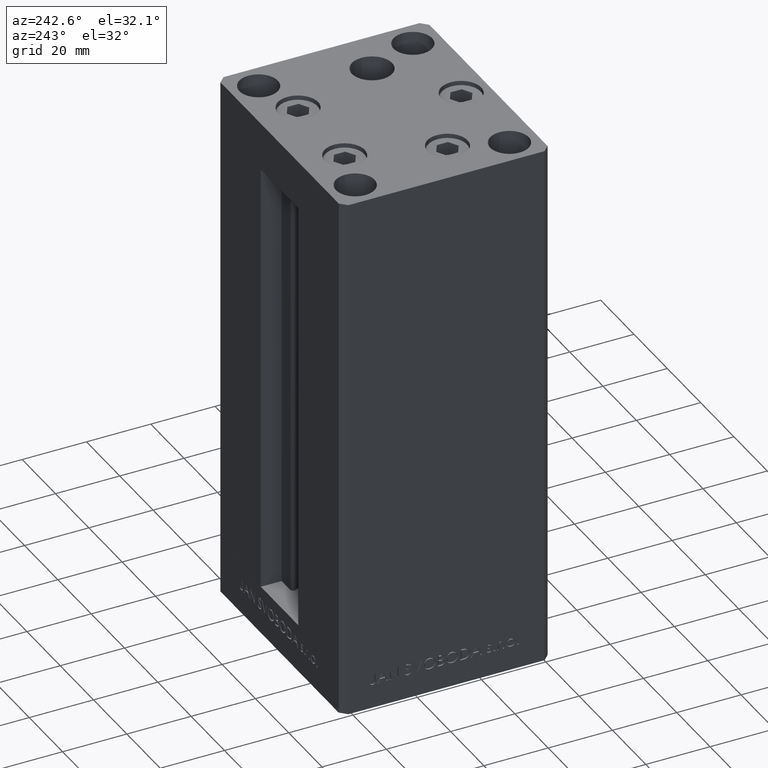
[diagram: clean part render]
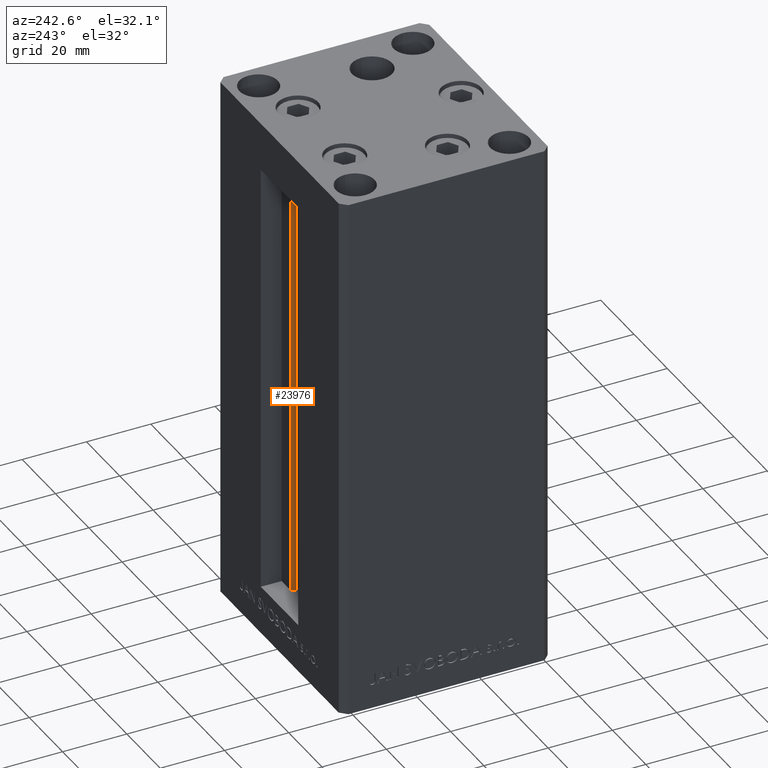
[diagram: same view with one face highlighted and labeled with its STEP entity id]
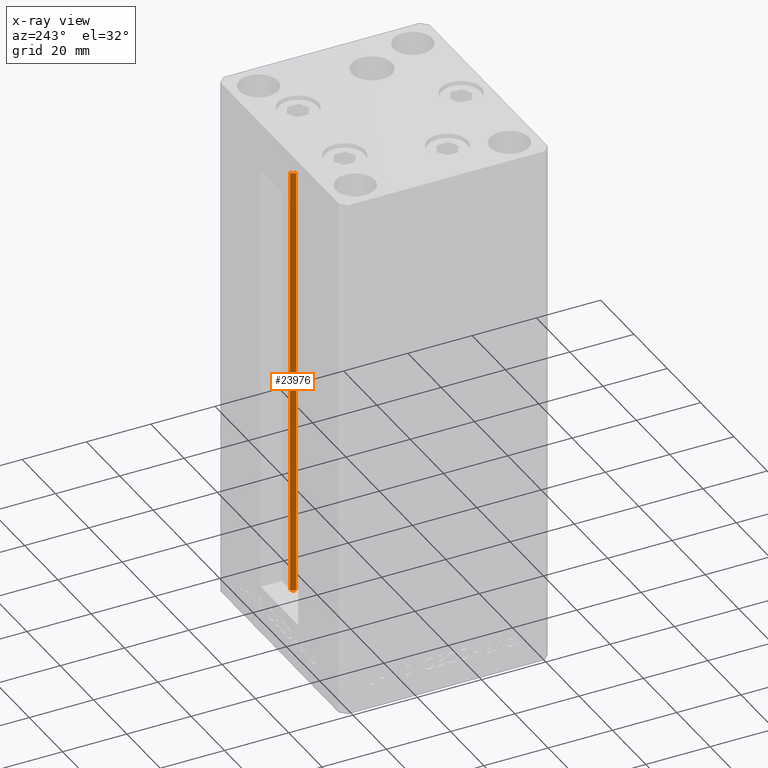
[diagram: x-ray of the same camera — body ghosted, the highlighted face saturated]
A machine part, auxiliary view. The second image highlights one B-rep face of the part: STEP entity #23976.
The next image is the same camera in x-ray: the body ghosted, the highlighted face saturated — about 0% of this face is hidden behind the body in this view.
In plain terms, the highlighted cylindrical surface (edge-blend (fillet) strip) has radius 0.9333 mm, axis along (0, 0, 1).
Its self-contained STEP definition (entity closure, byte-faithful):
#1125 = CARTESIAN_POINT ( 'NONE',  ( 6.183333333334001480, 25.06666666666599141, 0.000000000000000000 ) ) ;
#2088 = LINE ( 'NONE', #29267, #19190 ) ;
#2826 = DIRECTION ( 'NONE',  ( -0.000000000000000000, -0.000000000000000000, 1.000000000000000000 ) ) ;
#3742 = DIRECTION ( 'NONE',  ( -0.000000000000000000, -0.000000000000000000, 1.000000000000000000 ) ) ;
#4280 = VECTOR ( 'NONE', #3742, 1000.000000000000000 ) ;
#7678 = ORIENTED_EDGE ( 'NONE', *, *, #45188, .T. ) ;
#14258 = AXIS2_PLACEMENT_3D ( 'NONE', #31092, #27115, #35568 ) ;
#15198 = LINE ( 'NONE', #26707, #4280 ) ;
#16061 = DIRECTION ( 'NONE',  ( 1.000000000000000000, 0.000000000000000000, 0.000000000000000000 ) ) ;
#17609 = AXIS2_PLACEMENT_3D ( 'NONE', #18083, #33071, #33309 ) ;
#18083 = CARTESIAN_POINT ( 'NONE',  ( 6.183333333334001480, 25.06666666666599141, 0.000000000000000000 ) ) ;
#18344 = CARTESIAN_POINT ( 'NONE',  ( 5.375042956467948052, 24.59999999999899245, 136.0000000000000000 ) ) ;
#19190 = VECTOR ( 'NONE', #2826, 1000.000000000000000 ) ;
#19625 = EDGE_CURVE ( 'NONE', #20521, #31028, #2088, .T. ) ;
#20521 = VERTEX_POINT ( 'NONE', #22836 ) ;
#22446 = VERTEX_POINT ( 'NONE', #32689 ) ;
#22836 = CARTESIAN_POINT ( 'NONE',  ( 5.375042956467947164, 24.59999999999899245, 0.000000000000000000 ) ) ;
#23976 = ADVANCED_FACE ( 'NONE', ( #36810 ), #37538, .T. ) ;
#24622 = EDGE_CURVE ( 'NONE', #20521, #22446, #35160, .T. ) ;
#26401 = ORIENTED_EDGE ( 'NONE', *, *, #24622, .F. ) ;
#26707 = CARTESIAN_POINT ( 'NONE',  ( 6.183333333334001480, 25.99999999999999289, 0.000000000000000000 ) ) ;
#27115 = DIRECTION ( 'NONE',  ( 0.000000000000000000, 0.000000000000000000, -1.000000000000000000 ) ) ;
#27812 = DIRECTION ( 'NONE',  ( -0.000000000000000000, -0.000000000000000000, -1.000000000000000000 ) ) ;
#29267 = CARTESIAN_POINT ( 'NONE',  ( 5.375042956467947164, 24.59999999999899245, 0.000000000000000000 ) ) ;
#30480 = EDGE_CURVE ( 'NONE', #22446, #48401, #15198, .T. ) ;
#31028 = VERTEX_POINT ( 'NONE', #18344 ) ;
#31092 = CARTESIAN_POINT ( 'NONE',  ( 6.183333333334001480, 25.06666666666599141, 136.0000000000000000 ) ) ;
#32689 = CARTESIAN_POINT ( 'NONE',  ( 6.183333333334001480, 25.99999999999999289, 0.000000000000000000 ) ) ;
#33071 = DIRECTION ( 'NONE',  ( -0.000000000000000000, -0.000000000000000000, 1.000000000000000000 ) ) ;
#33309 = DIRECTION ( 'NONE',  ( 1.000000000000000000, 0.000000000000000000, 0.000000000000000000 ) ) ;
#35160 = CIRCLE ( 'NONE', #44723, 0.9333333333340008142 ) ;
#35568 = DIRECTION ( 'NONE',  ( 1.000000000000000000, 0.000000000000000000, 0.000000000000000000 ) ) ;
#35794 = CIRCLE ( 'NONE', #14258, 0.9333333333340008142 ) ;
#36776 = EDGE_LOOP ( 'NONE', ( #47285, #26401, #41168, #7678 ) ) ;
#36810 = FACE_OUTER_BOUND ( 'NONE', #36776, .T. ) ;
#37538 = CYLINDRICAL_SURFACE ( 'NONE', #17609, 0.9333333333340008142 ) ;
#40565 = CARTESIAN_POINT ( 'NONE',  ( 6.183333333334001480, 25.99999999999999289, 136.0000000000000000 ) ) ;
#41168 = ORIENTED_EDGE ( 'NONE', *, *, #19625, .T. ) ;
#44723 = AXIS2_PLACEMENT_3D ( 'NONE', #1125, #27812, #16061 ) ;
#45188 = EDGE_CURVE ( 'NONE', #31028, #48401, #35794, .T. ) ;
#47285 = ORIENTED_EDGE ( 'NONE', *, *, #30480, .F. ) ;
#48401 = VERTEX_POINT ( 'NONE', #40565 ) ;